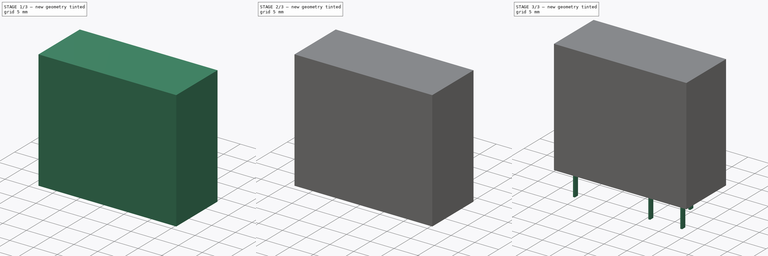
[diagram: build sequence overview — one tinted view per stage of 3, left to right]
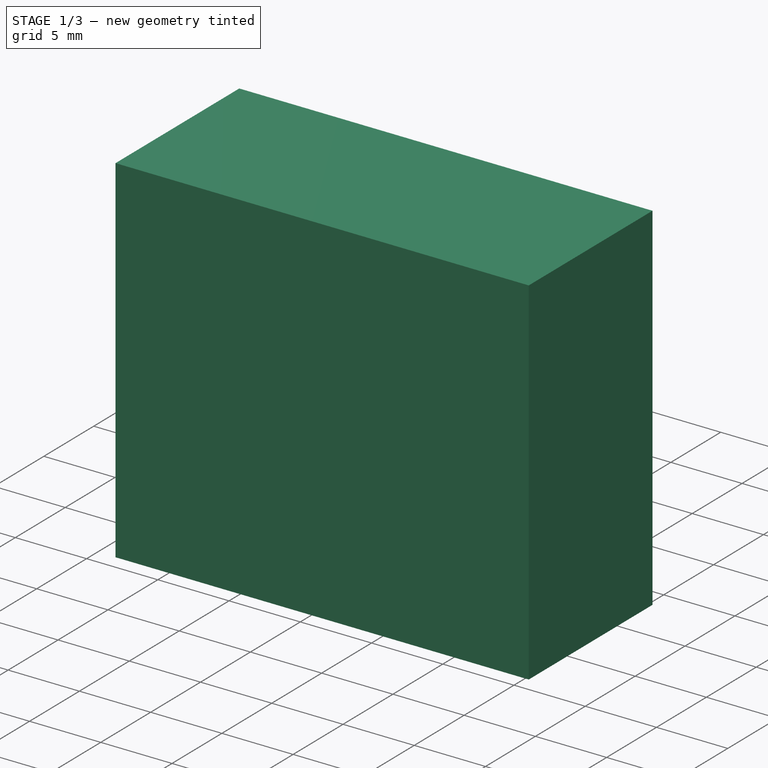
[diagram: stage 1 of 3 — iso view after this stage's code; geometry added in this stage tinted green]
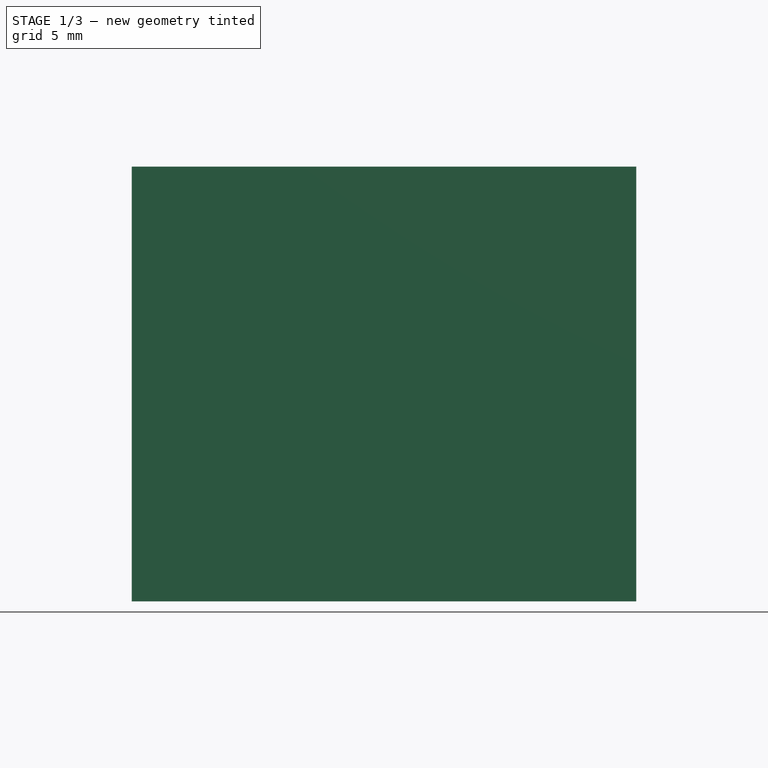
[diagram: stage 1 of 3 — front view after this stage's code; geometry added in this stage tinted green]
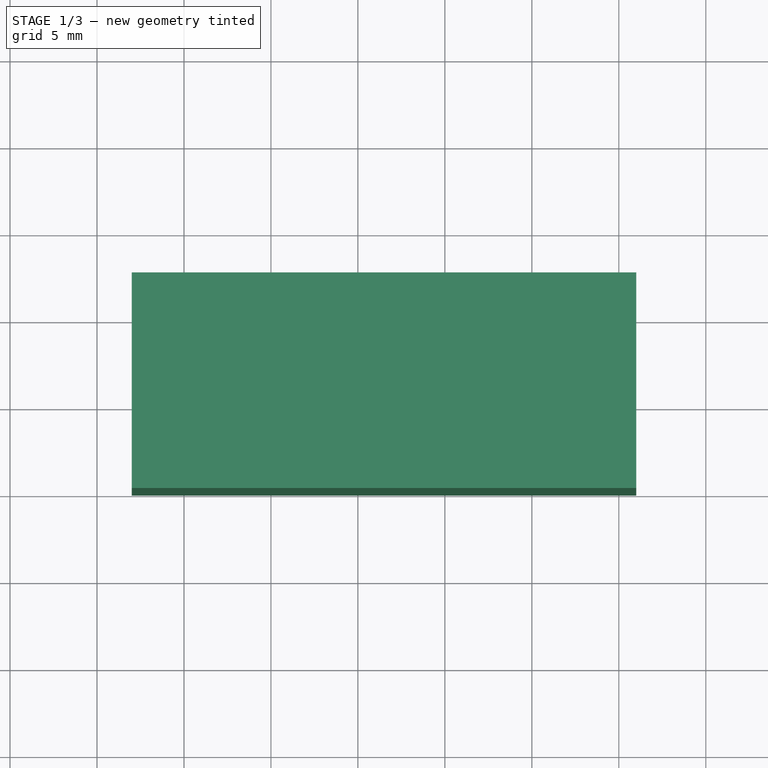
[diagram: stage 1 of 3 — top view after this stage's code; geometry added in this stage tinted green]
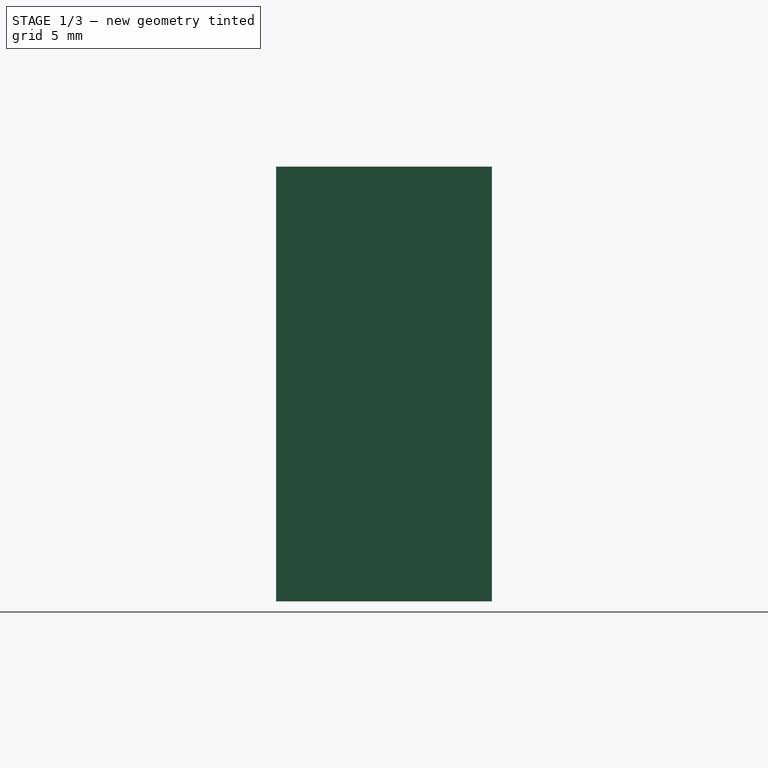
[diagram: stage 1 of 3 — right view after this stage's code; geometry added in this stage tinted green]
FCSTD DOCUMENT  (FreeCAD 0.16R6712 (Git))
Label: Relay_SPDT_Finder_40.31
License: All rights reserved
LicenseURL: http://en.wikipedia.org/wiki/All_rights_reserved
objects: Sketcher::SketchObject×7, PartDesign::Pad×4, Part::Feature×3, PartDesign::Revolution×3, App::DocumentObjectGroup×1, Part::MultiFuse×1
note: 25 computed .brp shape members not serialized (recipe doc carries the construction recipe); baked Part::Feature solids carry a one-line shape summary decoded from their .brp

FEATURE [Sketcher::SketchObject] Sketch004
  Placement = pos=(0,-3.75,0) rot=(0,0.707107,0.707107;3.14159rad)
  expr: Constraints[14] = 4.25 + 0.25 + 18
  sketch-geometry (5):
    g0: LineSegment [constr] StartX=-4 StartY=21.0206 StartZ=0 EndX=-4 EndY=0 EndZ=0
    g1: LineSegment StartX=-4 StartY=22.25 StartZ=0 EndX=1 EndY=22.25 EndZ=0
    g2: LineSegment StartX=1 StartY=22.25 StartZ=0 EndX=1 EndY=22.5 EndZ=0
    g3: LineSegment StartX=1 StartY=22.5 StartZ=0 EndX=-4 EndY=22.5 EndZ=0
    g4: LineSegment StartX=-4 StartY=22.5 StartZ=0 EndX=-4 EndY=22.25 EndZ=0
  constraints (15):
    c: PointOnObject(g0,g-1)
    c: Vertical(g0)
    c: PointOnObject(g1,g0)
    c: DistanceX(g1,g-1) = 4
    c: Coincident(g1,g2)
    c: Coincident(g2,g3)
    c: Coincident(g3,g4)
    c: Coincident(g4,g1)
    c: Horizontal(g1)
    c: Horizontal(g3)
    c: Vertical(g2)
    c: Vertical(g4)
    c: DistanceX(g3,g3) = 5
    c: DistanceY(g2,g2) = 0.25
    c: DistanceY(g0,g3) = 22.5
FEATURE [PartDesign::Revolution] Revolution002
  Angle = 360
  Axis = (0,0,-21.0206)
  Base = (4,-3.75,21.0206)
  Placement = pos=(0,-3.75,0) rot=(0,0.707107,0.707107;3.14159rad)
  ReferenceAxis = -> Sketch004 [Axis0]
  Sketch = -> Sketch004
FEATURE [Sketcher::SketchObject] Sketch005
  Placement = pos=(0,-7.5,0) rot=(0,0,1;1.5708rad)
  expr: Constraints[33] = (12.4 - 7.5) / 2
  sketch-geometry (13):
    g0: LineSegment StartX=-1.96 StartY=2.51 StartZ=0 EndX=9.46 EndY=2.51 EndZ=0
    g1: LineSegment StartX=9.46 StartY=2.51 StartZ=0 EndX=9.46 EndY=-25.51 EndZ=0
    g2: LineSegment StartX=9.46 StartY=-25.51 StartZ=0 EndX=-1.96 EndY=-25.51 EndZ=0
    g3: LineSegment StartX=-1.96 StartY=-25.51 StartZ=0 EndX=-1.96 EndY=2.51 EndZ=0
    g4: LineSegment StartX=9.95 StartY=-26 StartZ=0 EndX=-2.45 EndY=-26 EndZ=0
    g5: LineSegment StartX=-2.45 StartY=-26 StartZ=0 EndX=-2.45 EndY=3 EndZ=0
    g6: LineSegment StartX=-2.45 StartY=3 StartZ=0 EndX=9.95 EndY=3 EndZ=0
    g7: LineSegment StartX=9.95 StartY=3 StartZ=0 EndX=9.95 EndY=-26 EndZ=0
    g8: LineSegment [constr] StartX=3.75 StartY=3 StartZ=0 EndX=3.75 EndY=-26 EndZ=0
    g9: LineSegment [constr] StartX=-2.45 StartY=-11.5 StartZ=0 EndX=9.95 EndY=-11.5 EndZ=0
    g10: GeomPoint [constr] X=3.75 Y=-11.5 Z=0
    g11: GeomPoint [constr] X=3.75 Y=-25.51 Z=0
    g12: GeomPoint [constr] X=-1.96 Y=-11.5 Z=0
  constraints (35):
    c: Coincident(g0,g1)
    c: Coincident(g1,g2)
    c: Coincident(g2,g3)
    c: Coincident(g3,g0)
    c: Horizontal(g0)
    c: Horizontal(g2)
    c: Vertical(g1)
    c: Vertical(g3)
    c: Coincident(g4,g5)
    c: Coincident(g5,g6)
    c: Coincident(g6,g7)
    c: Coincident(g7,g4)
    c: Horizontal(g4)
    c: Horizontal(g6)
    c: Vertical(g5)
    c: Vertical(g7)
    c: PointOnObject(g8,g4)
    c: Vertical(g8)
    c: PointOnObject(g9,g7)
    c: Horizontal(g9)
    c: Symmetric(g8,g8,g10)
    c: Symmetric(g9,g9,g10)
    c: Symmetric(g5,g5,g9)
    c: PointOnObject(g11,g2)
    c: Symmetric(g2,g2,g11)
    c: PointOnObject(g11,g8)
    c: PointOnObject(g12,g3)
    c: Symmetric(g3,g3,g12)
    c: PointOnObject(g12,g9)
    c: DistanceX(g4,g2) = 0.49
    c: DistanceY(g4,g2) = 0.49
    c: DistanceY(g7,g7) = 29
    c: DistanceX(g4,g4) = 12.4
    c: DistanceX(g5,g-1) = 2.45
    c: DistanceY(g-1,g5) = 3
FEATURE [PartDesign::Pad] Pad002
  Length = 24.5
  Length2 = 100
  Placement = pos=(0,-7.5,0) rot=(0,0,1;1.5708rad)
  Sketch = -> Sketch005
  Type = 0
FEATURE [Sketcher::SketchObject] Sketch006
  Placement = pos=(0,-7.5,25) rot=(0,0,1;1.5708rad)
  expr: Constraints[19] = (12.4 - 7.5) / 2
  sketch-geometry (9):
    g0: LineSegment StartX=9.95 StartY=-26 StartZ=0 EndX=-2.45 EndY=-26 EndZ=0
    g1: LineSegment StartX=-2.45 StartY=-26 StartZ=0 EndX=-2.45 EndY=3 EndZ=0
    g2: LineSegment StartX=-2.45 StartY=3 StartZ=0 EndX=9.95 EndY=3 EndZ=0
    g3: LineSegment StartX=9.95 StartY=3 StartZ=0 EndX=9.95 EndY=-26 EndZ=0
    g4: LineSegment [constr] StartX=3.75 StartY=3 StartZ=0 EndX=3.75 EndY=-26 EndZ=0
    g5: LineSegment [constr] StartX=-2.45 StartY=-11.5 StartZ=0 EndX=9.95 EndY=-11.5 EndZ=0
    g6: GeomPoint [constr] X=3.75 Y=-11.5 Z=0
    g7: GeomPoint [constr] X=3.75 Y=-25.51 Z=0
    g8: GeomPoint [constr] X=-1.96 Y=-11.5 Z=0
  constraints (21):
    c: Coincident(g0,g1)
    c: Coincident(g1,g2)
    c: Coincident(g2,g3)
    c: Coincident(g3,g0)
    c: Horizontal(g0)
    c: Horizontal(g2)
    c: Vertical(g1)
    c: Vertical(g3)
    c: PointOnObject(g4,g0)
    c: Vertical(g4)
    c: PointOnObject(g5,g3)
    c: Horizontal(g5)
    c: Symmetric(g4,g4,g6)
    c: Symmetric(g5,g5,g6)
    c: Symmetric(g1,g1,g5)
    c: PointOnObject(g7,g4)
    c: PointOnObject(g8,g5)
    c: DistanceY(g3,g3) = 29
    c: DistanceX(g0,g0) = 12.4
    c: DistanceX(g1,g-1) = 2.45
    c: DistanceY(g-1,g1) = 3
FEATURE [PartDesign::Pad] Pad003
  Length = 0.5
  Length2 = 100
  Placement = pos=(0,-7.5,25) rot=(0,0,1;1.5708rad)
  Reversed = true
  Sketch = -> Sketch006
  Type = 0
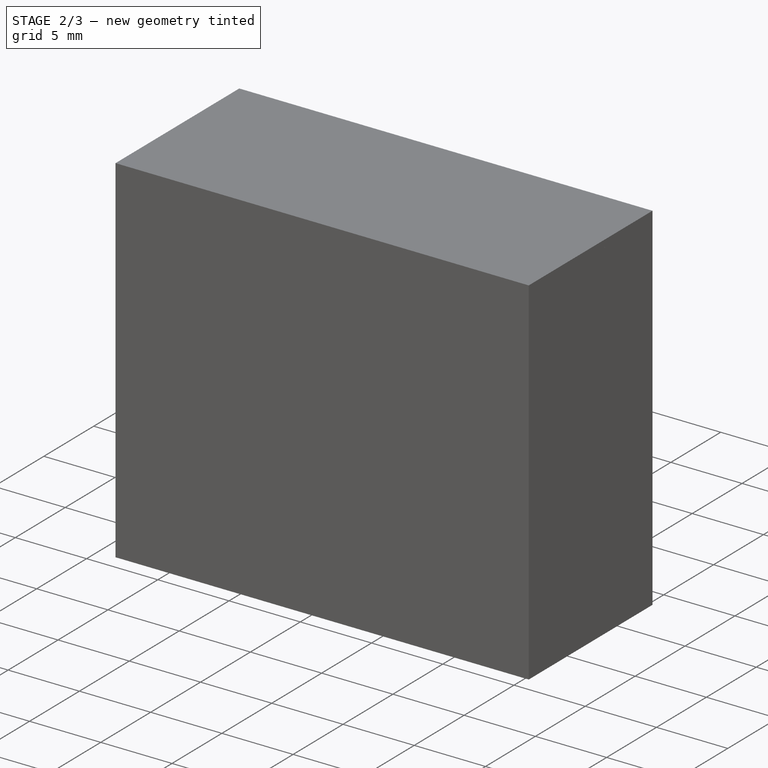
[diagram: stage 2 of 3 — iso view after this stage's code; geometry added in this stage tinted green]
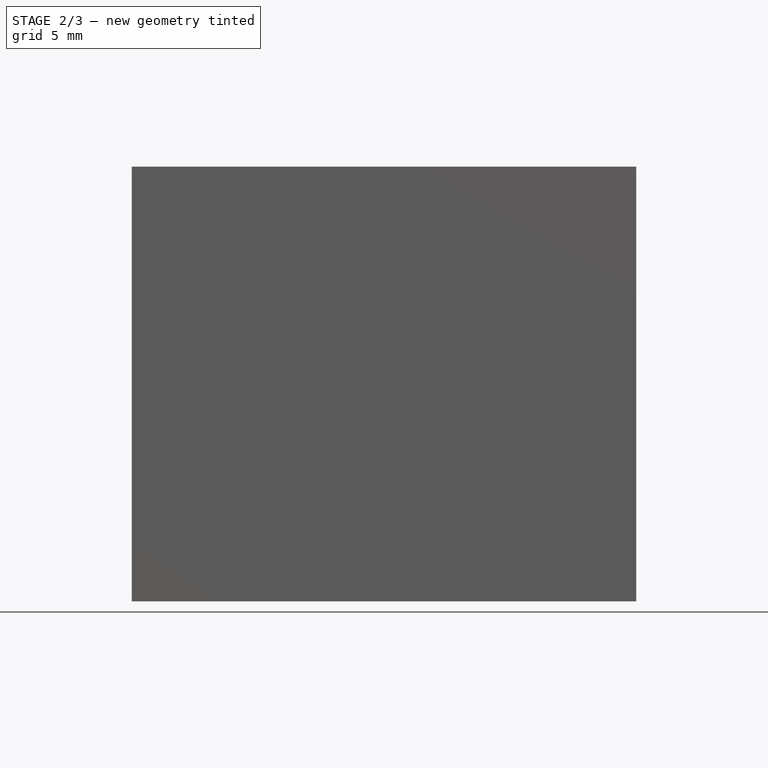
[diagram: stage 2 of 3 — front view after this stage's code; geometry added in this stage tinted green]
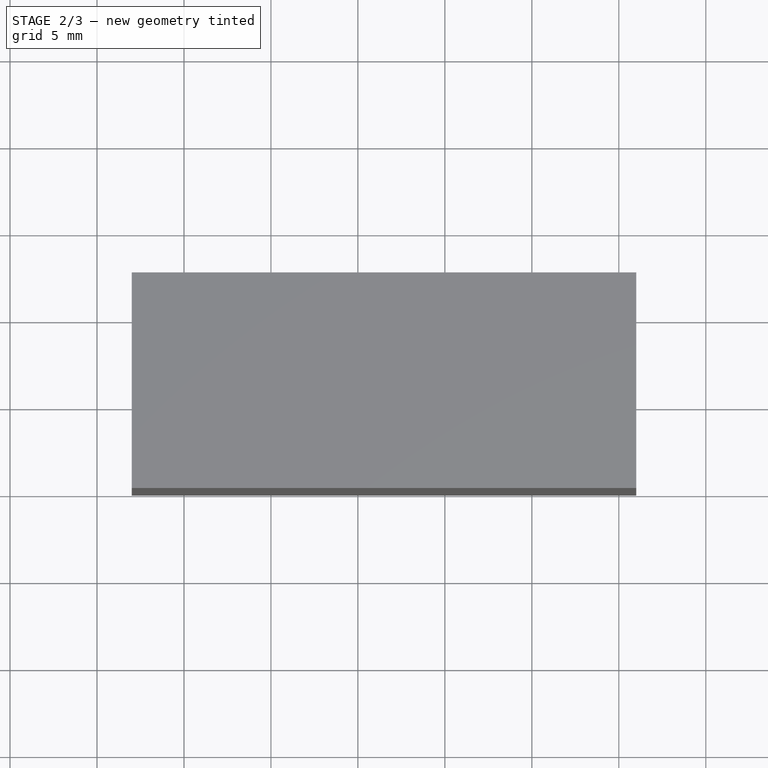
[diagram: stage 2 of 3 — top view after this stage's code; geometry added in this stage tinted green]
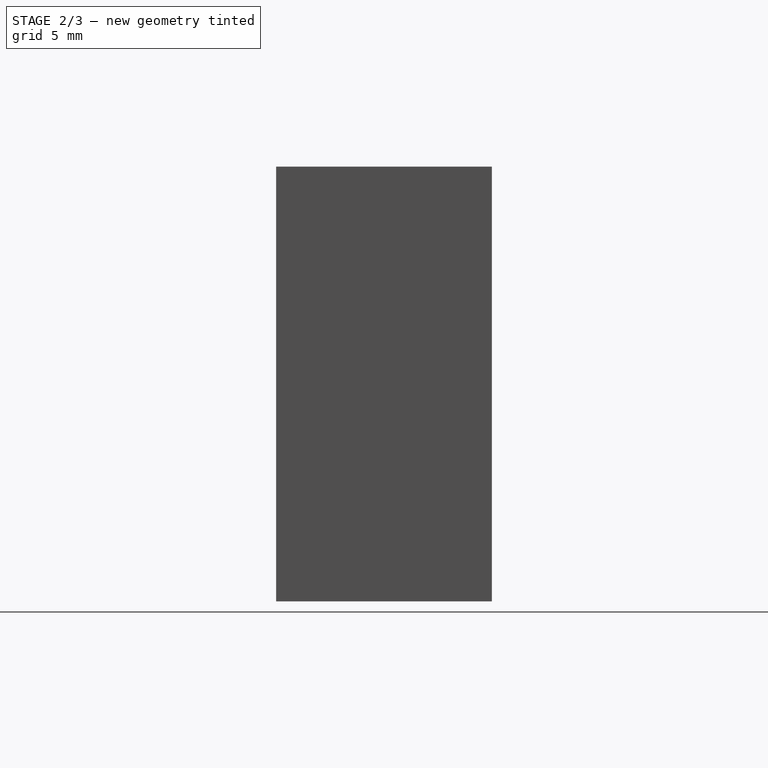
[diagram: stage 2 of 3 — right view after this stage's code; geometry added in this stage tinted green]
FEATURE [Sketcher::SketchObject] Sketch002
  Placement = pos=(0,-3.75,0) rot=(0,0.707107,0.707107;3.14159rad)
  sketch-geometry (5):
    g0: LineSegment StartX=-4 StartY=22.25 StartZ=0 EndX=0.7 EndY=22.25 EndZ=0
    g1: LineSegment StartX=0.7 StartY=22.25 StartZ=0 EndX=0.7 EndY=4.25 EndZ=0
    g2: LineSegment StartX=0.7 StartY=4.25 StartZ=0 EndX=-4 EndY=4.25 EndZ=0
    g3: LineSegment StartX=-4 StartY=4.25 StartZ=0 EndX=-4 EndY=22.25 EndZ=0
    g4: LineSegment [constr] StartX=-4 StartY=21.0206 StartZ=0 EndX=-4 EndY=0 EndZ=0
  constraints (15):
    c: Coincident(g0,g1)
    c: Coincident(g1,g2)
    c: Coincident(g2,g3)
    c: Coincident(g3,g0)
    c: Horizontal(g0)
    c: Horizontal(g2)
    c: Vertical(g1)
    c: Vertical(g3)
    c: PointOnObject(g4,g-1)
    c: Vertical(g4)
    c: PointOnObject(g0,g4)
    c: DistanceX(g0,g0) = 4.7
    c: DistanceX(g0,g-1) = 4
    c: DistanceY(g-1,g2) = 4.25
    c: DistanceY(g1,g1) = 18
FEATURE [Sketcher::SketchObject] Sketch003
  Placement = pos=(0,-3.75,0) rot=(0,0.707107,0.707107;3.14159rad)
  sketch-geometry (5):
    g0: LineSegment [constr] StartX=-4 StartY=21.0206 StartZ=0 EndX=-4 EndY=0 EndZ=0
    g1: LineSegment StartX=-4 StartY=4.25 StartZ=0 EndX=1 EndY=4.25 EndZ=0
    g2: LineSegment StartX=1 StartY=4.25 StartZ=0 EndX=1 EndY=4 EndZ=0
    g3: LineSegment StartX=1 StartY=4 StartZ=0 EndX=-4 EndY=4 EndZ=0
    g4: LineSegment StartX=-4 StartY=4 StartZ=0 EndX=-4 EndY=4.25 EndZ=0
  constraints (14):
    c: PointOnObject(g0,g-1)
    c: Vertical(g0)
    c: DistanceY(g-1,g1) = 4.25
    c: Coincident(g1,g2)
    c: Coincident(g2,g3)
    c: Coincident(g3,g4)
    c: Coincident(g4,g1)
    c: Horizontal(g1)
    c: Horizontal(g3)
    c: Vertical(g2)
    c: Vertical(g4)
    c: PointOnObject(g1,g0)
    c: DistanceX(g1,g1) = 5
    c: DistanceY(g2,g2) = 0.25
FEATURE [PartDesign::Revolution] Revolution
  Angle = 360
  Axis = (0,0,-21.0206)
  Base = (4,-3.75,21.0206)
  Placement = pos=(0,-3.75,0) rot=(0,0.707107,0.707107;3.14159rad)
  ReferenceAxis = -> Sketch002 [Axis0]
  Sketch = -> Sketch002
FEATURE [PartDesign::Revolution] Revolution001
  Angle = 360
  Axis = (0,0,-21.0206)
  Base = (4,-3.75,21.0206)
  Placement = pos=(0,-3.75,0) rot=(0,0.707107,0.707107;3.14159rad)
  ReferenceAxis = -> Sketch003 [Axis0]
  Sketch = -> Sketch003
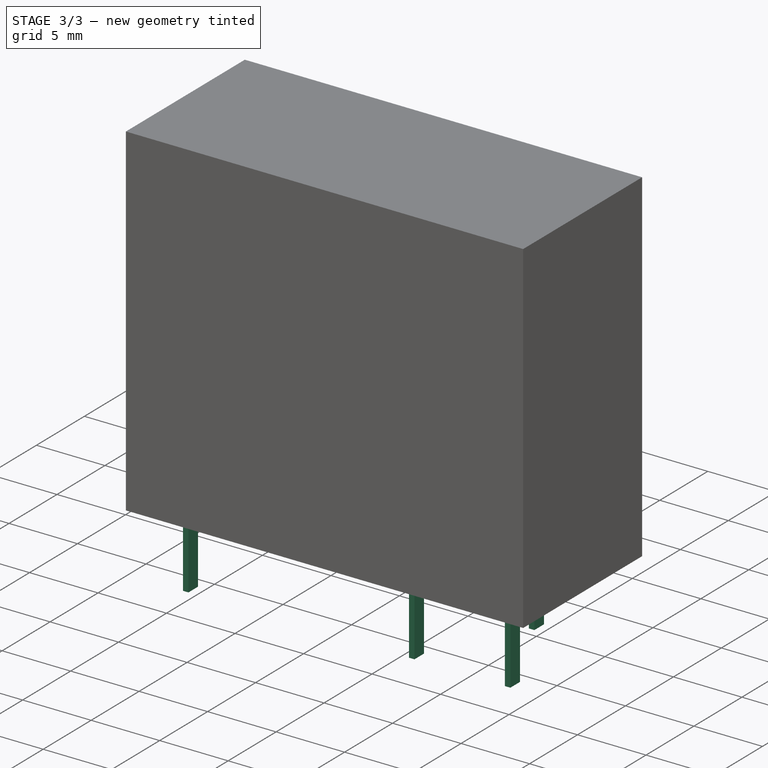
[diagram: stage 3 of 3 — iso view after this stage's code; geometry added in this stage tinted green]
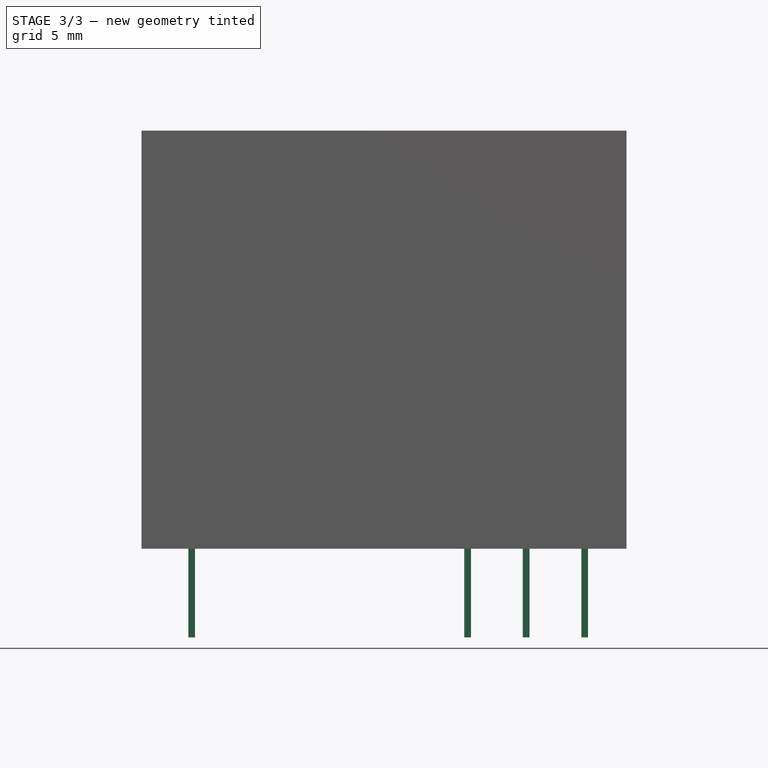
[diagram: stage 3 of 3 — front view after this stage's code; geometry added in this stage tinted green]
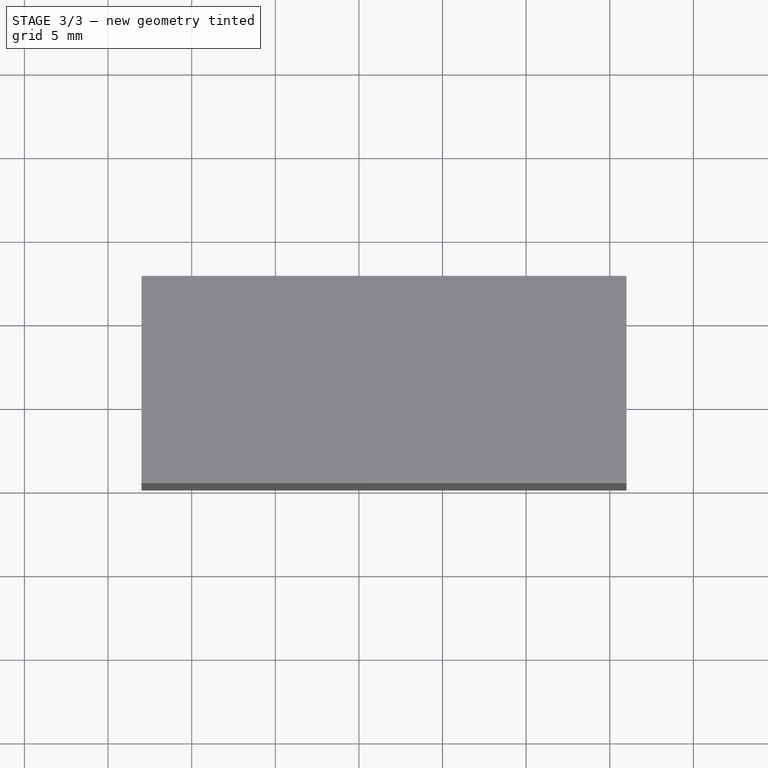
[diagram: stage 3 of 3 — top view after this stage's code; geometry added in this stage tinted green]
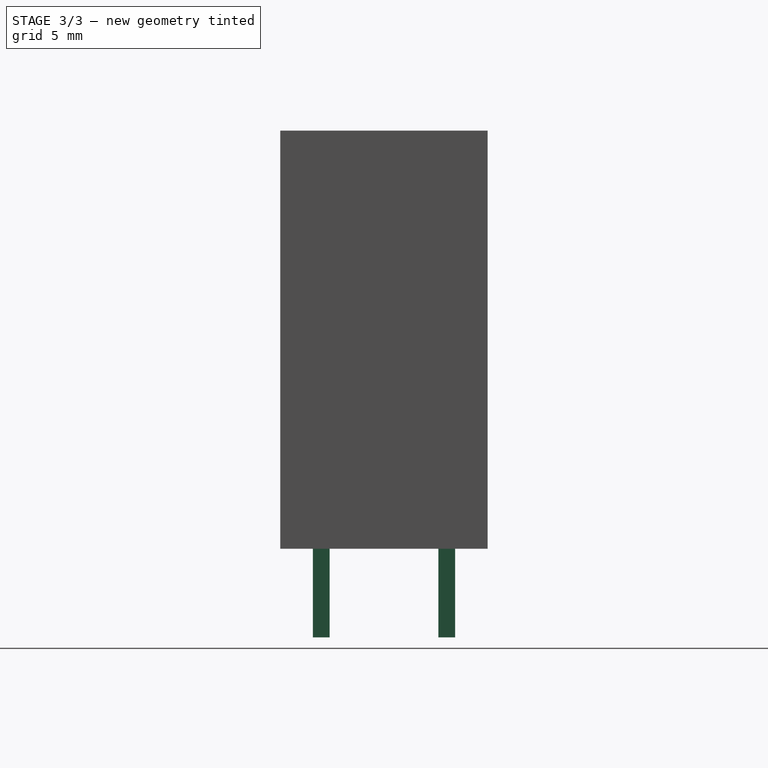
[diagram: stage 3 of 3 — right view after this stage's code; geometry added in this stage tinted green]
FEATURE [Sketcher::SketchObject] Sketch
  Placement = pos=(0,-7.5,0.5) rot=(0,0,1;1.5708rad)
  sketch-geometry (27):
    g0: LineSegment StartX=-0.5 StartY=0.2 StartZ=0 EndX=0.5 EndY=0.2 EndZ=0
    g1: LineSegment StartX=0.5 StartY=0.2 StartZ=0 EndX=0.5 EndY=-0.2 EndZ=0
    g2: LineSegment StartX=0.5 StartY=-0.2 StartZ=0 EndX=-0.5 EndY=-0.2 EndZ=0
    g3: LineSegment StartX=-0.5 StartY=-0.2 StartZ=0 EndX=-0.5 EndY=0.2 EndZ=0
    g4: GeomPoint [constr] X=0 Y=0.2 Z=0
    g5: GeomPoint [constr] X=0.5 Y=0 Z=0
    g6: LineSegment StartX=7 StartY=0.2 StartZ=0 EndX=8 EndY=0.2 EndZ=0
    g7: LineSegment StartX=8 StartY=0.2 StartZ=0 EndX=8 EndY=-0.2 EndZ=0
    g8: LineSegment StartX=8 StartY=-0.2 StartZ=0 EndX=7 EndY=-0.2 EndZ=0
    g9: LineSegment StartX=7 StartY=-0.2 StartZ=0 EndX=7 EndY=0.2 EndZ=0
    g10: LineSegment StartX=-0.5 StartY=-16.3 StartZ=0 EndX=0.5 EndY=-16.3 EndZ=0
    g11: LineSegment StartX=0.5 StartY=-16.3 StartZ=0 EndX=0.5 EndY=-16.7 EndZ=0
    g12: LineSegment StartX=0.5 StartY=-16.7 StartZ=0 EndX=-0.5 EndY=-16.7 EndZ=0
    g13: LineSegment StartX=-0.5 StartY=-16.7 StartZ=0 EndX=-0.5 EndY=-16.3 EndZ=0
    g14: LineSegment StartX=-0.5 StartY=-23.3 StartZ=0 EndX=0.5 EndY=-23.3 EndZ=0
    g15: LineSegment StartX=0.5 StartY=-23.3 StartZ=0 EndX=0.5 EndY=-23.7 EndZ=0
    g16: LineSegment StartX=0.5 StartY=-23.7 StartZ=0 EndX=-0.5 EndY=-23.7 EndZ=0
    g17: LineSegment StartX=-0.5 StartY=-23.7 StartZ=0 EndX=-0.5 EndY=-23.3 EndZ=0
    g18: LineSegment StartX=7 StartY=-19.8 StartZ=0 EndX=8 EndY=-19.8 EndZ=0
    g19: LineSegment StartX=8 StartY=-19.8 StartZ=0 EndX=8 EndY=-20.2 EndZ=0
    g20: LineSegment StartX=8 StartY=-20.2 StartZ=0 EndX=7 EndY=-20.2 EndZ=0
    g21: LineSegment StartX=7 StartY=-20.2 StartZ=0 EndX=7 EndY=-19.8 EndZ=0
    g22: LineSegment [constr] StartX=-0.5 StartY=0 StartZ=0 EndX=-0.5 EndY=-16.5 EndZ=0
    g23: LineSegment [constr] StartX=-0.5 StartY=-16.5 StartZ=0 EndX=-0.5 EndY=-20 EndZ=0
    g24: LineSegment [constr] StartX=-0.5 StartY=-20 StartZ=0 EndX=-0.5 EndY=-23.5 EndZ=0
    g25: LineSegment [constr] StartX=-0.5 StartY=0 StartZ=0 EndX=7 EndY=0 EndZ=0
    g26: LineSegment [constr] StartX=-0.5 StartY=-20 StartZ=0 EndX=7 EndY=-20 EndZ=0
  constraints (77):
    c: Coincident(g0,g1)
    c: Coincident(g1,g2)
    c: Coincident(g2,g3)
    c: Coincident(g3,g0)
    c: Horizontal(g0)
    c: Horizontal(g2)
    c: Vertical(g1)
    c: Vertical(g3)
    c: PointOnObject(g4,g0)
    c: PointOnObject(g5,g-1)
    c: Symmetric(g1,g1,g5)
    c: Symmetric(g0,g0,g4)
    c: PointOnObject(g4,g-2)
    c: DistanceY(g3,g3) = 0.4
    c: DistanceX(g0,g0) = 1
    c: Coincident(g6,g7)
    c: Coincident(g7,g8)
    c: Coincident(g8,g9)
    c: Coincident(g9,g6)
    c: Horizontal(g6)
    c: Horizontal(g8)
    c: Vertical(g7)
    c: Vertical(g9)
    c: Coincident(g10,g11)
    c: Coincident(g11,g12)
    c: Coincident(g12,g13)
    c: Coincident(g13,g10)
    c: Horizontal(g10)
    c: Horizontal(g12)
    c: Vertical(g11)
    c: Vertical(g13)
    c: Coincident(g14,g15)
    c: Coincident(g15,g16)
    c: Coincident(g16,g17)
    c: Coincident(g17,g14)
    c: Horizontal(g14)
    c: Horizontal(g16)
    c: Vertical(g15)
    c: Vertical(g17)
    c: Coincident(g18,g19)
    c: Coincident(g19,g20)
    c: Coincident(g20,g21)
    c: Coincident(g21,g18)
    c: Horizontal(g18)
    c: Horizontal(g20)
    c: Vertical(g19)
    c: Vertical(g21)
    c: Equal(g12,g2)
    c: Equal(g9,g21)
    c: Equal(g11,g1)
    c: PointOnObject(g22,g3)
    c: Coincident(g23,g22)
    c: PointOnObject(g24,g17)
    c: Symmetric(g17,g17,g24)
    c: Symmetric(g13,g13,g22)
    c: Symmetric(g3,g3,g22)
    c: Coincident(g25,g22)
    c: Horizontal(g25)
    c: Symmetric(g9,g9,g25)
    c: PointOnObject(g26,g21)
    c: Symmetric(g21,g21,g26)
    c: Horizontal(g26)
    c: Vertical(g23)
    c: Vertical(g24)
    c: Vertical(g22)
    c: DistanceX(g25,g25) = 7.5
    c: Equal(g24,g23)
    c: DistanceY(g24,g24) = 3.5
    c: Equal(g26,g25)
    c: Equal(g18,g6)
    c: Equal(g6,g0)
    c: Equal(g3,g19)
    c: Equal(g14,g10)
    c: Equal(g15,g11)
    c: Coincident(g24,g23)
    c: Coincident(g23,g26)
    c: DistanceY(g23,g22) = 20
FEATURE [PartDesign::Pad] Pad
  Length = 5.8
  Length2 = 100
  Placement = pos=(0,-7.5,0.5) rot=(0,0,1;1.5708rad)
  Reversed = true
  Sketch = -> Sketch
  Type = 0
FEATURE [Part::Feature] FusionAxisZ1  label="Z"
  shape: bbox 0.8 x 0.8 x 14 mm, 8 faces (baked)
FEATURE [Part::Feature] FusionAxisY1  label="Y"
  Placement = pos=(0,0,0.05) rot=(-1,0,0;1.5708rad)
  shape: bbox 0.8 x 14 x 0.8 mm, 8 faces (baked)
FEATURE [Part::Feature] FusionAxisX1  label="X"
  Placement = pos=(0,-0.05,0) rot=(0,1,0;1.5708rad)
  shape: bbox 14 x 0.8 x 0.8 mm, 8 faces (baked)
FEATURE [App::DocumentObjectGroup] axis
  Group = -> [FusionAxisZ1,FusionAxisY1,FusionAxisX1]
FEATURE [Sketcher::SketchObject] Sketch001
  Placement = pos=(0,-3.75,0) rot=(0,0.707107,0.707107;3.14159rad)
  sketch-geometry (12):
    g0: LineSegment StartX=2.5 StartY=0 StartZ=0 EndX=-25.5 EndY=0 EndZ=0
    g1: LineSegment StartX=-25.5 StartY=0 StartZ=0 EndX=-25.5 EndY=7 EndZ=0
    g2: LineSegment StartX=-25.5 StartY=7 StartZ=0 EndX=-21.5 EndY=7 EndZ=0
    g3: LineSegment StartX=-21.5 StartY=7 StartZ=0 EndX=-21.5 EndY=5.01802 EndZ=0
    g4: LineSegment StartX=-21.5 StartY=5.01802 StartZ=0 EndX=-18.5 EndY=5.01802 EndZ=0
    g5: LineSegment StartX=-18.5 StartY=5.01802 StartZ=0 EndX=-18.5 EndY=7 EndZ=0
    g6: LineSegment StartX=-18.5 StartY=7 StartZ=0 EndX=-13.5 EndY=7 EndZ=0
    g7: LineSegment StartX=-13.5 StartY=7 StartZ=0 EndX=-13.5 EndY=20 EndZ=0
    g8: LineSegment StartX=-13.5 StartY=20 StartZ=0 EndX=-9.5 EndY=20 EndZ=0
    g9: LineSegment StartX=-9.5 StartY=20 StartZ=0 EndX=-9.5 EndY=4 EndZ=0
    g10: LineSegment StartX=-9.5 StartY=4 StartZ=0 EndX=2.5 EndY=4 EndZ=0
    g11: LineSegment StartX=2.5 StartY=4 StartZ=0 EndX=2.5 EndY=0 EndZ=0
  constraints (35):
    c: PointOnObject(g0,g-1)
    c: Horizontal(g0)
    c: Coincident(g1,g0)
    c: Vertical(g1)
    c: Coincident(g2,g1)
    c: Horizontal(g2)
    c: Coincident(g3,g2)
    c: Vertical(g3)
    c: Coincident(g4,g3)
    c: Horizontal(g4)
    c: Coincident(g5,g4)
    c: Vertical(g5)
    c: Coincident(g6,g5)
    c: Horizontal(g6)
    c: Coincident(g7,g6)
    c: Vertical(g7)
    c: Coincident(g8,g7)
    c: Horizontal(g8)
    c: Coincident(g9,g8)
    c: Vertical(g9)
    c: Horizontal(g10)
    c: Coincident(g11,g10)
    c: Coincident(g11,g0)
    c: Vertical(g11)
    c: DistanceX(g0,g0) = 28
    c: DistanceX(g-1,g0) = 2.5
    c: DistanceY(g0,g8) = 20
    c: DistanceY(g11,g11) = 4
    c: Coincident(g9,g10)
    c: Equal(g5,g3)
    c: DistanceX(g2,g2) = 4
    c: DistanceX(g4,g4) = 3
    c: DistanceX(g6,g6) = 5
    c: DistanceX(g10,g10) = 12
    c: DistanceY(g1,g1) = 7
FEATURE [PartDesign::Pad] Pad001
  Length = 11.4
  Length2 = 100
  Midplane = true
  Placement = pos=(0,-3.75,0) rot=(0,0.707107,0.707107;3.14159rad)
  Sketch = -> Sketch001
  Type = 0
FEATURE [Part::MultiFuse] Pad_mp_cp  label="Relay_SPDT_Finder_40.31"
  Shapes = -> [Pad,Pad002,Revolution002,Revolution001,Revolution,Pad001,Pad003]
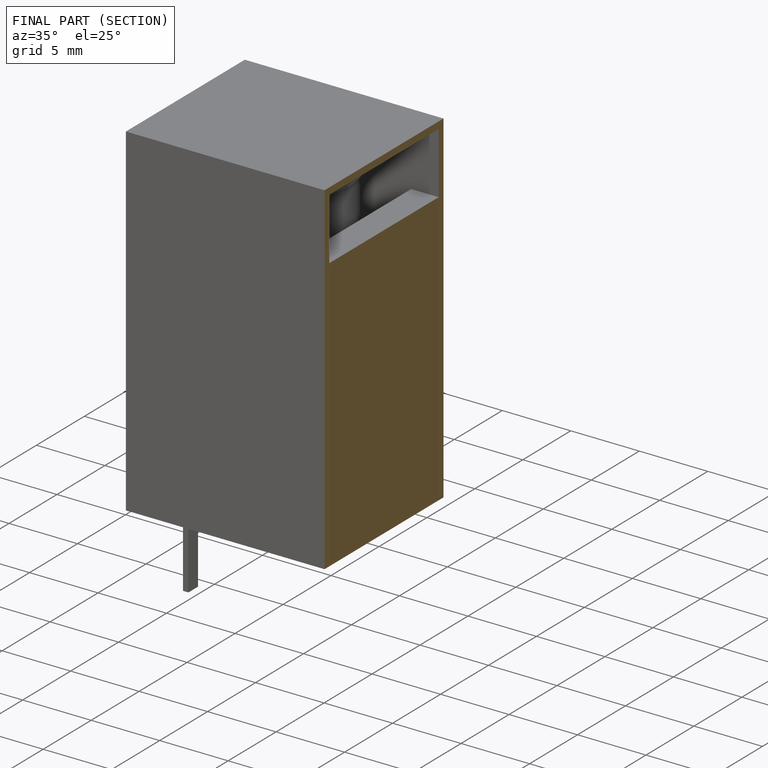
[diagram: finished part — half-section view (interior)]
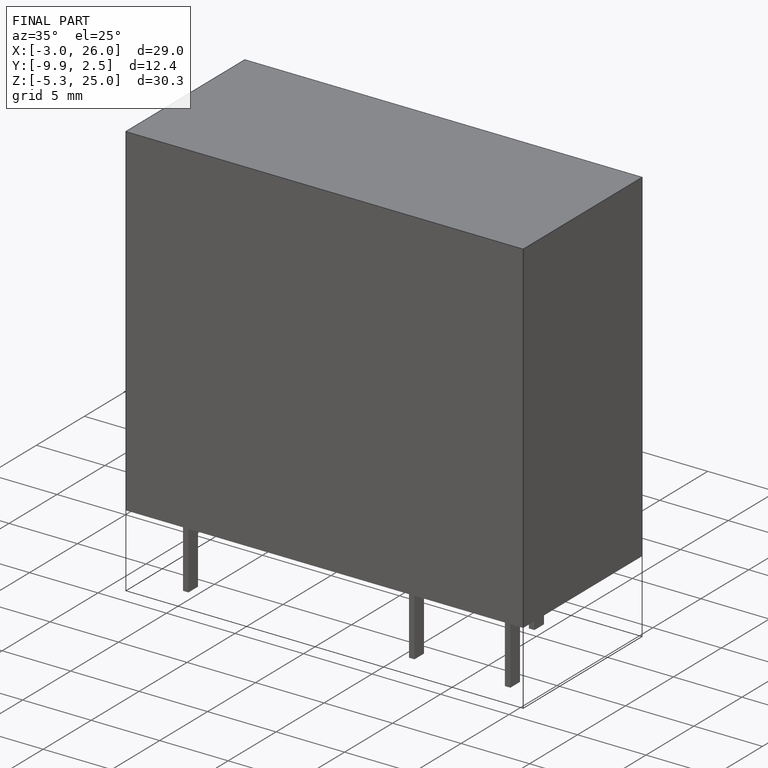
[diagram: finished part — iso view with bounding-box wireframe]
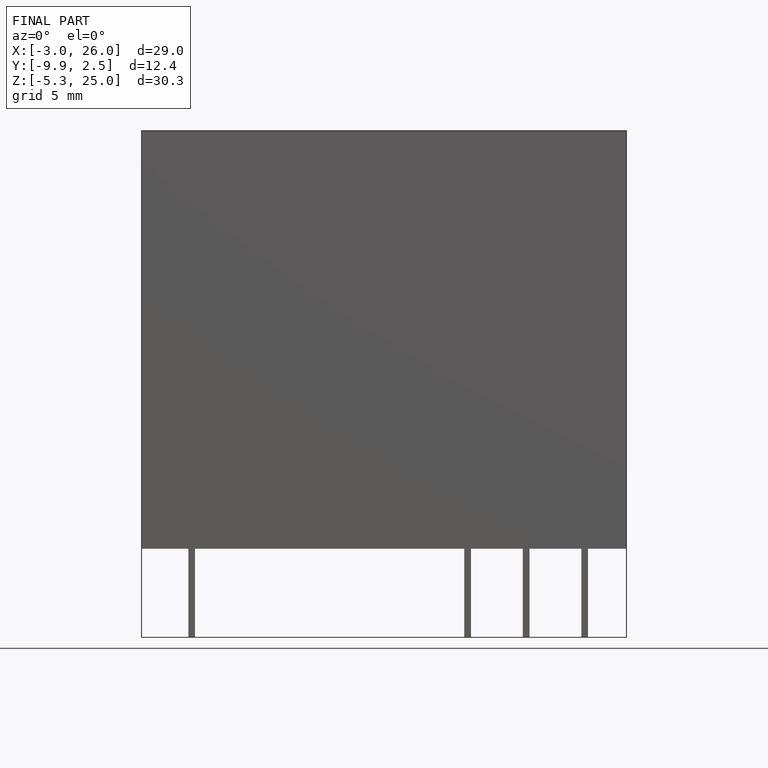
[diagram: finished part — front view with bounding-box wireframe]
